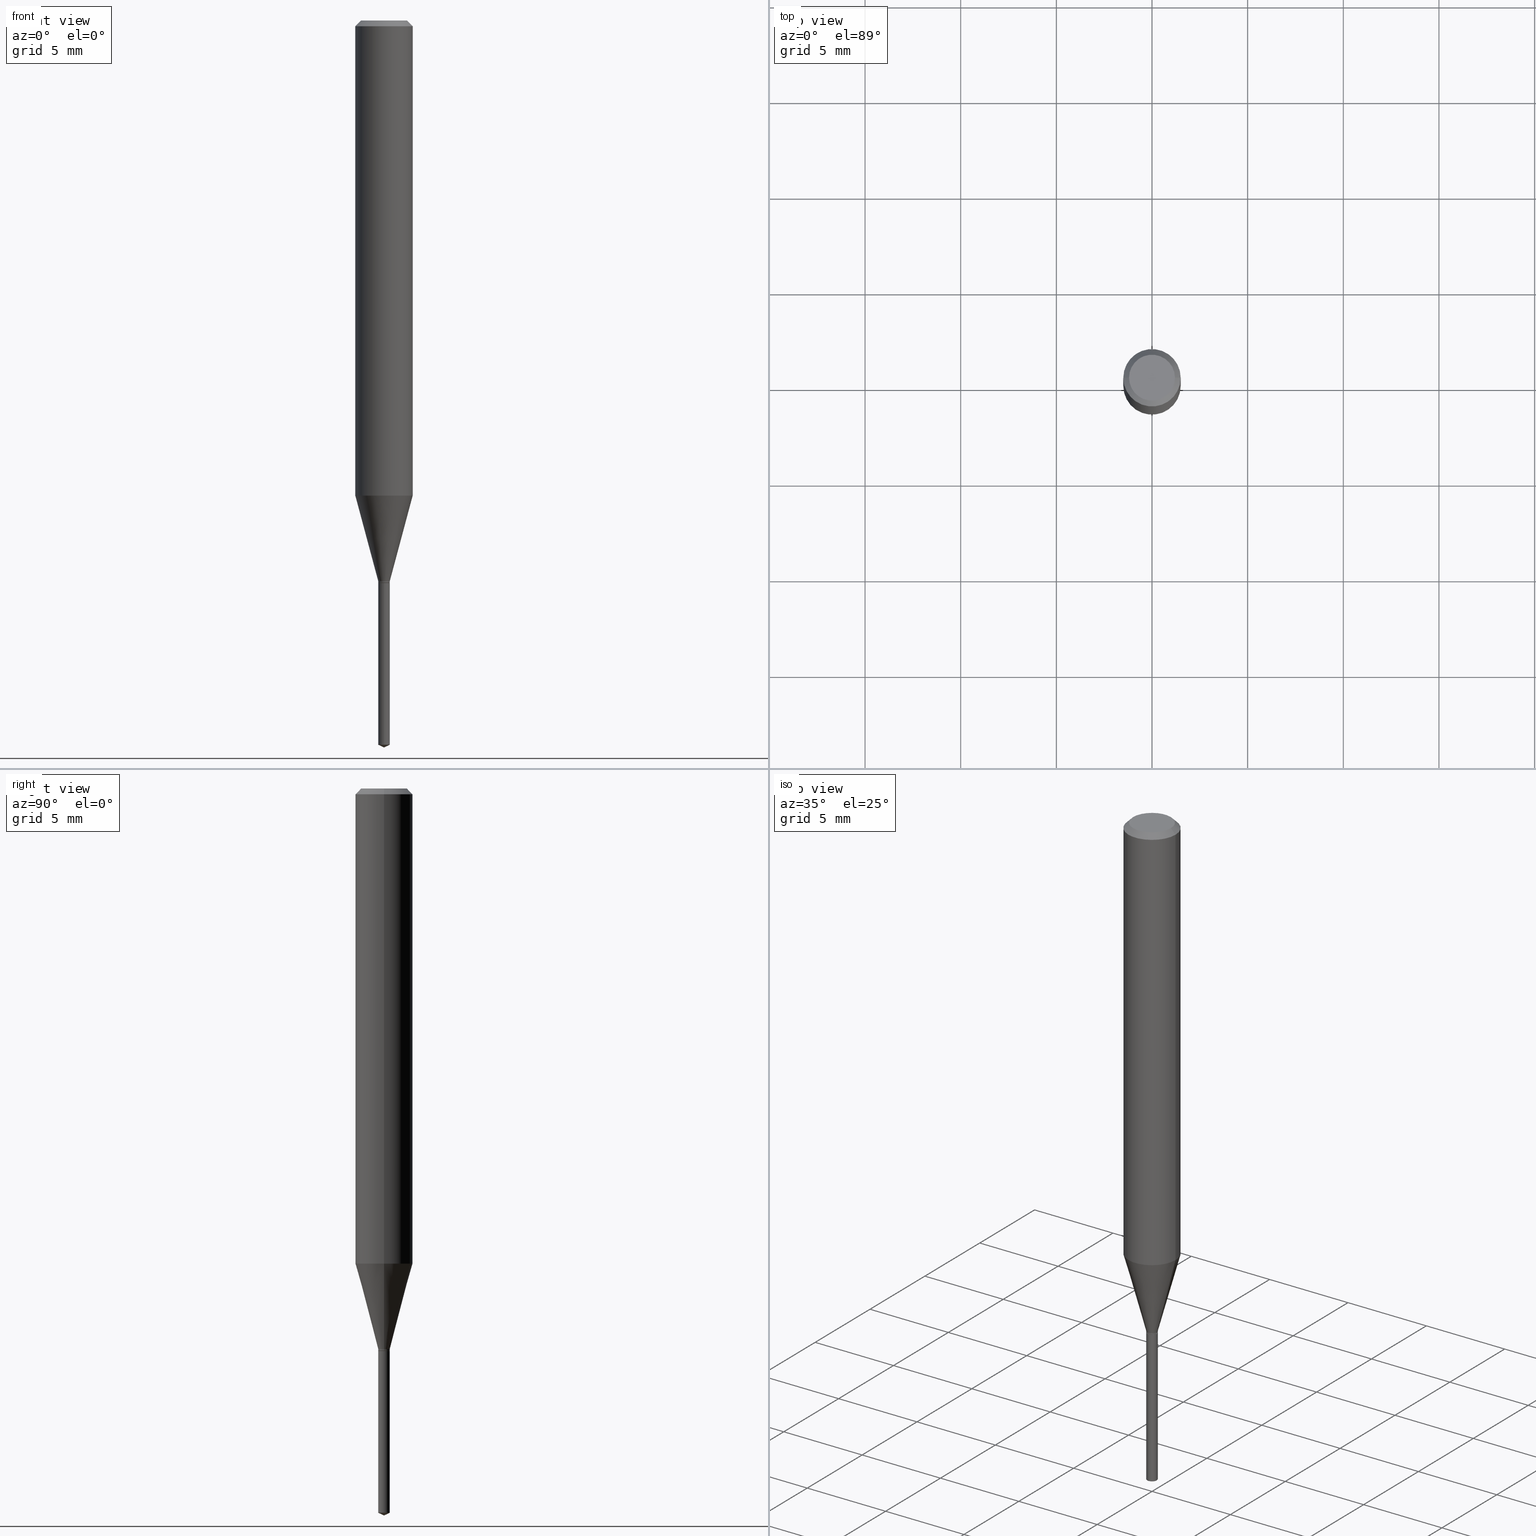
[diagram: canonical four-view strip — front | top / right | iso, engineering-drawing reading convention]
A machine part, canonical four-view strip (front | top / right | iso — engineering-drawing reading convention). The complete STEP part file that produces these views, byte-faithful:
ISO-10303-21;
HEADER;
FILE_DESCRIPTION (( 'STEP AP203' ),
    '1' );
FILE_NAME ('07435.STEP',
    '2024-04-23T21:24:49',
    ( '' ),
    ( '' ),
    'SwSTEP 2.0',
    'SolidWorks 2023',
    '' );
FILE_SCHEMA (( 'CONFIG_CONTROL_DESIGN' ));
ENDSEC;

DATA;
#1 = ORIENTED_EDGE ( 'NONE', *, *, #400, .F. ) ;
#2 = PERSON_AND_ORGANIZATION_ROLE ( 'creator' ) ;
#3 = CARTESIAN_POINT ( 'NONE',  ( 3.642354130892786976E-29, -5.208483163453085578E-15, -1.490597569633770991 ) ) ;
#4 = PERSON_AND_ORGANIZATION_ROLE ( 'design_supplier' ) ;
#5 = CARTESIAN_POINT ( 'NONE',  ( 3.642354130892786976E-29, -5.208483163453085578E-15, -1.490597569633770991 ) ) ;
#6 = PERSON_AND_ORGANIZATION ( #482, #166 ) ;
#7 = AXIS2_PLACEMENT_3D ( 'NONE', #32, #378, #296 ) ;
#8 = DIRECTION ( 'NONE',  ( -2.436895557736890074E-29, 3.503758718580032420E-15, 1.000000000000000000 ) ) ;
#9 = CC_DESIGN_APPROVAL ( #284, ( #55 ) ) ;
#10 = EDGE_CURVE ( 'NONE', #190, #469, #73, .T. ) ;
#11 = APPLICATION_PROTOCOL_DEFINITION ( 'international standard', 'config_control_design', 1994, #23 ) ;
#12 = DIRECTION ( 'NONE',  ( -2.445468806185136597E-29, 3.491481338843145583E-15, 1.000000000000000000 ) ) ;
#13 = ORIENTED_EDGE ( 'NONE', *, *, #269, .F. ) ;
#14 = EDGE_CURVE ( 'NONE', #433, #190, #382, .T. ) ;
#15 = CARTESIAN_POINT ( 'NONE',  ( 0.000000000000000000, 0.000000000000000000, 0.000000000000000000 ) ) ;
#16 = DIRECTION ( 'NONE',  ( -2.445468806185136597E-29, 3.491481338843145583E-15, 1.000000000000000000 ) ) ;
#17 = AXIS2_PLACEMENT_3D ( 'NONE', #396, #434, #467 ) ;
#18 = DIRECTION ( 'NONE',  ( -2.445468806185136597E-29, 3.491481338843145583E-15, 1.000000000000000000 ) ) ;
#19 = ORIENTED_EDGE ( 'NONE', *, *, #462, .T. ) ;
#20 = EDGE_LOOP ( 'NONE', ( #136, #127 ) ) ;
#21 = AXIS2_PLACEMENT_3D ( 'NONE', #403, #145, #377 ) ;
#22 = CIRCLE ( 'NONE', #31, 0.05904999999999999832 ) ;
#23 = APPLICATION_CONTEXT ( 'configuration controlled 3d designs of mechanical parts and assemblies' ) ;
#24 = ORIENTED_EDGE ( 'NONE', *, *, #234, .F. ) ;
#25 = LINE ( 'NONE', #137, #90 ) ;
#26 = ORIENTED_EDGE ( 'NONE', *, *, #204, .T. ) ;
#27 = DIRECTION ( 'NONE',  ( -2.445468806185136597E-29, 3.491481338843145583E-15, 1.000000000000000000 ) ) ;
#28 = ADVANCED_FACE ( 'NONE', ( #151 ), #344, .T. ) ;
#29 = VERTEX_POINT ( 'NONE', #340 ) ;
#30 = DIRECTION ( 'NONE',  ( -2.445468806185136597E-29, 3.491481338843145583E-15, 1.000000000000000000 ) ) ;
#31 = AXIS2_PLACEMENT_3D ( 'NONE', #440, #30, #184 ) ;
#32 = CARTESIAN_POINT ( 'NONE',  ( 2.830630143159295633E-29, -4.041389649710940900E-15, -1.157499999999999973 ) ) ;
#33 = CARTESIAN_POINT ( 'NONE',  ( 0.05905000000000011628, -3.825827684443467023E-15, -0.9776605993423704843 ) ) ;
#34 = DIRECTION ( 'NONE',  ( -6.982962677686266711E-15, -1.000000000000000000, 3.520397390770451109E-15 ) ) ;
#35 =( NAMED_UNIT ( * ) SI_UNIT ( $, .STERADIAN. ) SOLID_ANGLE_UNIT ( ) );
#36 = DIRECTION ( 'NONE',  ( -2.436895557736890355E-29, 3.503758718580032420E-15, 1.000000000000000000 ) ) ;
#37 = APPROVAL_PERSON_ORGANIZATION ( #6, #370, #173 ) ;
#38 = DIRECTION ( 'NONE',  ( -2.445468806185136877E-29, 3.491481338843145188E-15, 1.000000000000000000 ) ) ;
#39 = PERSON_AND_ORGANIZATION_ROLE ( 'creator' ) ;
#40 = CARTESIAN_POINT ( 'NONE',  ( 2.829407408756202832E-29, -4.039643909041518608E-15, -1.156999999999999806 ) ) ;
#41 = APPROVAL_STATUS ( 'not_yet_approved' ) ;
#42 = LINE ( 'NONE', #208, #411 ) ;
#43 = PERSON_AND_ORGANIZATION_ROLE ( 'design_owner' ) ;
#44 = ADVANCED_FACE ( 'NONE', ( #100 ), #174, .T. ) ;
#45 = CIRCLE ( 'NONE', #387, 0.01180000000000000146 ) ;
#46 = CARTESIAN_POINT ( 'NONE',  ( 8.265746106709734507E-48, -1.180129479067563789E-33, -3.380025165646692144E-19 ) ) ;
#47 = PRODUCT_DEFINITION_FORMATION_WITH_SPECIFIED_SOURCE ( 'ANY', '', #97, .NOT_KNOWN. ) ;
#48 = DIRECTION ( 'NONE',  ( -2.445468806185136597E-29, 3.491481338843145583E-15, 1.000000000000000000 ) ) ;
#49 = DIRECTION ( 'NONE',  ( 2.438088387897960049E-29, -3.491481338843145188E-15, -1.000000000000000000 ) ) ;
#50 = EDGE_CURVE ( 'NONE', #365, #359, #471, .T. ) ;
#51 = LINE ( 'NONE', #316, #464 ) ;
#52 = CIRCLE ( 'NONE', #371, 0.04724000000000000421 ) ;
#53 = ORIENTED_EDGE ( 'NONE', *, *, #50, .T. ) ;
#54 = APPROVAL_PERSON_ORGANIZATION ( #414, #329, #381 ) ;
#55 = PRODUCT_DEFINITION ( 'UNKNOWN', '', #47, #285 ) ;
#56 = EDGE_LOOP ( 'NONE', ( #1, #221, #394 ) ) ;
#57 = EDGE_CURVE ( 'NONE', #89, #433, #45, .T. ) ;
#58 = ORIENTED_EDGE ( 'NONE', *, *, #188, .T. ) ;
#59 = AXIS2_PLACEMENT_3D ( 'NONE', #220, #96, #334 ) ;
#60 = CARTESIAN_POINT ( 'NONE',  ( 0.01180000000000000146, -4.122042868638216732E-15, -1.156999999999999806 ) ) ;
#61 = ORIENTED_EDGE ( 'NONE', *, *, #475, .T. ) ;
#62 = CYLINDRICAL_SURFACE ( 'NONE', #158, 0.05905000000000006771 ) ;
#63 = ORIENTED_EDGE ( 'NONE', *, *, #485, .F. ) ;
#64 = DIRECTION ( 'NONE',  ( 2.445468806185136597E-29, -3.491481338843145583E-15, -1.000000000000000000 ) ) ;
#65 = LINE ( 'NONE', #373, #103 ) ;
#66 = CARTESIAN_POINT ( 'NONE',  ( 2.888098660104663328E-31, -4.123439461173779030E-17, -0.01181000000000006871 ) ) ;
#67 = AXIS2_PLACEMENT_3D ( 'NONE', #460, #274, #421 ) ;
#68 = CARTESIAN_POINT ( 'NONE',  ( 0.04724000000000000421, -3.852183633974369345E-16, -3.380025165621689721E-19 ) ) ;
#69 = DIMENSIONAL_EXPONENTS ( 1.000000000000000000, 0.000000000000000000, 0.000000000000000000, 0.000000000000000000, 0.000000000000000000, 0.000000000000000000, 0.000000000000000000 ) ;
#70 = FACE_OUTER_BOUND ( 'NONE', #245, .T. ) ;
#71 = DIRECTION ( 'NONE',  ( 0.7071067811865453523, -7.319954787623248157E-15, -0.7071067811865496822 ) ) ;
#72 =( LENGTH_UNIT ( ) NAMED_UNIT ( * ) SI_UNIT ( $, .METRE. ) );
#73 = LINE ( 'NONE', #333, #249 ) ;
#74 = PERSON_AND_ORGANIZATION ( #482, #166 ) ;
#75 = AXIS2_PLACEMENT_3D ( 'NONE', #444, #448, #484 ) ;
#76 = CIRCLE ( 'NONE', #447, 0.01130000000000000102 ) ;
#77 = DIRECTION ( 'NONE',  ( -6.982962677686265922E-15, -1.000000000000000000, 0.000000000000000000 ) ) ;
#78 = COORDINATED_UNIVERSAL_TIME_OFFSET ( 5, 0, .BEHIND. ) ;
#79 = CARTESIAN_POINT ( 'NONE',  ( 2.888098660104663328E-31, -4.123439461173779030E-17, -0.01181000000000006871 ) ) ;
#80 = DIRECTION ( 'NONE',  ( 1.000000000000000000, -6.982962677686258033E-15, 0.000000000000000000 ) ) ;
#81 = ADVANCED_FACE ( 'NONE', ( #223 ), #124, .T. ) ;
#82 = CARTESIAN_POINT ( 'NONE',  ( -8.239895959666965094E-17, -0.01180000000000404510, -1.157499999999999973 ) ) ;
#83 = ORIENTED_EDGE ( 'NONE', *, *, #210, .F. ) ;
#84 = AXIS2_PLACEMENT_3D ( 'NONE', #3, #36, #153 ) ;
#85 = CYLINDRICAL_SURFACE ( 'NONE', #314, 0.01180000000000000146 ) ;
#86 = EDGE_LOOP ( 'NONE', ( #348, #160 ) ) ;
#87 = FACE_OUTER_BOUND ( 'NONE', #321, .T. ) ;
#88 = CARTESIAN_POINT ( 'NONE',  ( 4.132873053354867254E-48, -5.900647395337818946E-34, -1.690012582823346072E-19 ) ) ;
#89 = VERTEX_POINT ( 'NONE', #406 ) ;
#90 = VECTOR ( 'NONE', #252, 39.37007874015748143 ) ;
#91 = ORIENTED_EDGE ( 'NONE', *, *, #177, .F. ) ;
#92 = EDGE_CURVE ( 'NONE', #172, #98, #288, .T. ) ;
#93 = ORIENTED_EDGE ( 'NONE', *, *, #57, .T. ) ;
#94 = DIRECTION ( 'NONE',  ( 1.000000000000000000, -6.982962677686254878E-15, 0.000000000000000000 ) ) ;
#95 = ORIENTED_EDGE ( 'NONE', *, *, #142, .T. ) ;
#96 = DIRECTION ( 'NONE',  ( -2.445468806185136597E-29, 3.491481338843145583E-15, 1.000000000000000000 ) ) ;
#97 = PRODUCT ( '07435', '07435', '', ( #150 ) ) ;
#98 = VERTEX_POINT ( 'NONE', #68 ) ;
#99 = DIRECTION ( 'NONE',  ( -2.445468806185136597E-29, 3.491481338843145583E-15, 1.000000000000000000 ) ) ;
#100 = FACE_OUTER_BOUND ( 'NONE', #56, .T. ) ;
#101 = CARTESIAN_POINT ( 'NONE',  ( 3.665860549465548495E-29, -5.213551284776692655E-15, -1.496099999999999985 ) ) ;
#102 = VERTEX_POINT ( 'NONE', #196 ) ;
#103 = VECTOR ( 'NONE', #71, 39.37007874015748143 ) ;
#104 = CYLINDRICAL_SURFACE ( 'NONE', #479, 0.01180000000000000319 ) ;
#105 =( GEOMETRIC_REPRESENTATION_CONTEXT ( 3 ) GLOBAL_UNCERTAINTY_ASSIGNED_CONTEXT ( ( #375 ) ) GLOBAL_UNIT_ASSIGNED_CONTEXT ( ( #200, #456, #35 ) ) REPRESENTATION_CONTEXT ( 'NONE', 'WORKASPACE' ) );
#106 = ADVANCED_FACE ( 'NONE', ( #107 ), #148, .T. ) ;
#107 = FACE_OUTER_BOUND ( 'NONE', #120, .T. ) ;
#108 = PERSON_AND_ORGANIZATION ( #482, #166 ) ;
#109 = DIRECTION ( 'NONE',  ( -2.445468806185136597E-29, 3.491481338843145583E-15, 1.000000000000000000 ) ) ;
#110 = APPROVAL_STATUS ( 'not_yet_approved' ) ;
#111 = DIRECTION ( 'NONE',  ( 1.000000000000000000, -6.982962677686258033E-15, 0.000000000000000000 ) ) ;
#112 = ADVANCED_FACE ( 'NONE', ( #293 ), #114, .T. ) ;
#113 = DATE_AND_TIME ( #306, #149 ) ;
#114 = CONICAL_SURFACE ( 'NONE', #21, 84.42940631927440620, 1.134464013796316229 ) ;
#115 = VECTOR ( 'NONE', #326, 39.37007874015748143 ) ;
#116 = ADVANCED_BREP_SHAPE_REPRESENTATION ( '07435', ( #337, #163, #239 ), #105 ) ;
#117 = FACE_OUTER_BOUND ( 'NONE', #397, .T. ) ;
#118 = EDGE_CURVE ( 'NONE', #98, #143, #65, .T. ) ;
#119 = LINE ( 'NONE', #122, #436 ) ;
#120 = EDGE_LOOP ( 'NONE', ( #13, #214, #412, #139 ) ) ;
#121 = CALENDAR_DATE ( 2024, 23, 4 ) ;
#122 = CARTESIAN_POINT ( 'NONE',  ( 0.01130000000000000102, -4.120297127968795228E-15, -1.157499999999999973 ) ) ;
#123 = EDGE_LOOP ( 'NONE', ( #353, #53, #435, #247 ) ) ;
#124 = CONICAL_SURFACE ( 'NONE', #489, 0.01180000000000000146, 0.2617993877991500740 ) ;
#125 = LOCAL_TIME ( 17, 24, 49.00000000000000000, #209 ) ;
#126 = LINE ( 'NONE', #82, #191 ) ;
#127 = ORIENTED_EDGE ( 'NONE', *, *, #234, .T. ) ;
#128 = CALENDAR_DATE ( 2024, 23, 4 ) ;
#129 = CARTESIAN_POINT ( 'NONE',  ( 8.384404281972834178E-17, 0.01179999999999595782, -1.157499999999999973 ) ) ;
#130 = DIRECTION ( 'NONE',  ( 1.000000000000000000, -6.982962677686265922E-15, 4.876176775795935793E-29 ) ) ;
#131 = EDGE_LOOP ( 'NONE', ( #95, #428, #299, #91 ) ) ;
#132 = AXIS2_PLACEMENT_3D ( 'NONE', #233, #376, #342 ) ;
#133 = EDGE_LOOP ( 'NONE', ( #331, #472, #135, #176 ) ) ;
#134 = CIRCLE ( 'NONE', #17, 0.01180000000000000146 ) ;
#135 = ORIENTED_EDGE ( 'NONE', *, *, #302, .F. ) ;
#136 = ORIENTED_EDGE ( 'NONE', *, *, #92, .T. ) ;
#137 = CARTESIAN_POINT ( 'NONE',  ( -0.05904999999999999832, 3.711095515056362547E-16, -0.01181000000000006871 ) ) ;
#138 = ADVANCED_FACE ( 'NONE', ( #449 ), #185, .T. ) ;
#139 = ORIENTED_EDGE ( 'NONE', *, *, #169, .F. ) ;
#140 = AXIS2_PLACEMENT_3D ( 'NONE', #347, #352, #457 ) ;
#141 = DIRECTION ( 'NONE',  ( 1.000000000000000000, -6.982962677686266711E-15, 4.876176775795936353E-29 ) ) ;
#142 = EDGE_CURVE ( 'NONE', #359, #365, #298, .T. ) ;
#143 = VERTEX_POINT ( 'NONE', #228 ) ;
#144 = CARTESIAN_POINT ( 'NONE',  ( -0.01180000000000000146, -3.950562644213562832E-15, -1.153999999999999915 ) ) ;
#145 = DIRECTION ( 'NONE',  ( -2.436895557736890355E-29, 3.503758718580032420E-15, 1.000000000000000000 ) ) ;
#146 = ADVANCED_FACE ( 'NONE', ( #261 ), #305, .F. ) ;
#147 = CARTESIAN_POINT ( 'NONE',  ( 8.384404281972829247E-17, 0.01179999999999479902, -1.490597569633770991 ) ) ;
#148 = CYLINDRICAL_SURFACE ( 'NONE', #265, 0.05905000000000006771 ) ;
#149 = LOCAL_TIME ( 17, 24, 49.00000000000000000, #78 ) ;
#150 = MECHANICAL_CONTEXT ( 'NONE', #268, 'mechanical' ) ;
#151 = FACE_OUTER_BOUND ( 'NONE', #399, .T. ) ;
#152 = CALENDAR_DATE ( 2024, 23, 4 ) ;
#153 = DIRECTION ( 'NONE',  ( -6.982962677686265922E-15, -1.000000000000000000, 0.000000000000000000 ) ) ;
#154 = PERSON_AND_ORGANIZATION ( #482, #166 ) ;
#155 = CARTESIAN_POINT ( 'NONE',  ( -0.01130000000000000102, -3.958449093395937755E-15, -1.157499999999999973 ) ) ;
#156 = PERSON_AND_ORGANIZATION ( #482, #166 ) ;
#157 = AXIS2_PLACEMENT_3D ( 'NONE', #271, #48, #417 ) ;
#158 = AXIS2_PLACEMENT_3D ( 'NONE', #367, #27, #141 ) ;
#159 = CARTESIAN_POINT ( 'NONE',  ( 0.01130000000000000102, -4.120297127968795228E-15, -1.157499999999999973 ) ) ;
#160 = ORIENTED_EDGE ( 'NONE', *, *, #317, .F. ) ;
#161 = APPROVAL_STATUS ( 'not_yet_approved' ) ;
#162 = DIRECTION ( 'NONE',  ( -2.445468806185136877E-29, 3.491481338843145188E-15, 1.000000000000000000 ) ) ;
#163 = MANIFOLD_SOLID_BREP ( 'Body-Move/Copy2[2]', #422 ) ;
#164 = CARTESIAN_POINT ( 'NONE',  ( 2.822071002337647144E-29, -4.029169465024989587E-15, -1.153999999999999915 ) ) ;
#165 = PRODUCT_RELATED_PRODUCT_CATEGORY ( 'detail', '', ( #97 ) ) ;
#166 = ORGANIZATION ( 'UNSPECIFIED', 'UNSPECIFIED', '' ) ;
#167 = DIRECTION ( 'NONE',  ( 1.000000000000000000, -6.982962677686267499E-15, 4.876176775795935793E-29 ) ) ;
#168 = DIRECTION ( 'NONE',  ( -1.000000000000000000, 6.982962677686266711E-15, 0.000000000000000000 ) ) ;
#169 = EDGE_CURVE ( 'NONE', #327, #143, #361, .T. ) ;
#170 = ORIENTED_EDGE ( 'NONE', *, *, #429, .T. ) ;
#171 = EDGE_CURVE ( 'NONE', #365, #325, #313, .T. ) ;
#172 = VERTEX_POINT ( 'NONE', #237 ) ;
#173 = APPROVAL_ROLE ( '' ) ;
#174 = CONICAL_SURFACE ( 'NONE', #224, 84.42940631927440620, 1.134464013796316229 ) ;
#175 = VERTEX_POINT ( 'NONE', #159 ) ;
#176 = ORIENTED_EDGE ( 'NONE', *, *, #10, .F. ) ;
#177 = EDGE_CURVE ( 'NONE', #359, #102, #126, .T. ) ;
#178 = DIRECTION ( 'NONE',  ( -2.436895557736890355E-29, 3.503758718580032420E-15, 1.000000000000000000 ) ) ;
#179 = ORIENTED_EDGE ( 'NONE', *, *, #475, .F. ) ;
#180 = DIRECTION ( 'NONE',  ( -6.982962677686265133E-15, -1.000000000000000000, 0.000000000000000000 ) ) ;
#181 = ORIENTED_EDGE ( 'NONE', *, *, #485, .T. ) ;
#182 = VECTOR ( 'NONE', #8, 39.37007874015748143 ) ;
#183 = AXIS2_PLACEMENT_3D ( 'NONE', #79, #236, #384 ) ;
#184 = DIRECTION ( 'NONE',  ( 1.000000000000000000, -6.982962677686266711E-15, 0.000000000000000000 ) ) ;
#185 = CYLINDRICAL_SURFACE ( 'NONE', #7, 0.01180000000000000319 ) ;
#186 = FACE_OUTER_BOUND ( 'NONE', #439, .T. ) ;
#187 = DIRECTION ( 'NONE',  ( -2.445468806185136597E-29, 3.491481338843145583E-15, 1.000000000000000000 ) ) ;
#188 = EDGE_CURVE ( 'NONE', #246, #89, #42, .T. ) ;
#189 = COORDINATED_UNIVERSAL_TIME_OFFSET ( 5, 0, .BEHIND. ) ;
#190 = VERTEX_POINT ( 'NONE', #386 ) ;
#191 = VECTOR ( 'NONE', #241, 39.37007874015748143 ) ;
#192 = CIRCLE ( 'NONE', #438, 0.01180000000000000146 ) ;
#193 = DIRECTION ( 'NONE',  ( 0.000000000000000000, 0.000000000000000000, 1.000000000000000000 ) ) ;
#194 = ORIENTED_EDGE ( 'NONE', *, *, #408, .T. ) ;
#195 = COORDINATED_UNIVERSAL_TIME_OFFSET ( 5, 0, .BEHIND. ) ;
#196 = CARTESIAN_POINT ( 'NONE',  ( -8.239895959666962629E-17, -0.01180000000000404337, -1.157499999999999973 ) ) ;
#197 = SECURITY_CLASSIFICATION_LEVEL ( 'unclassified' ) ;
#198 = DIRECTION ( 'NONE',  ( -1.000000000000000000, 6.982962677686265922E-15, -4.876176775795935793E-29 ) ) ;
#199 = ORIENTED_EDGE ( 'NONE', *, *, #169, .T. ) ;
#200 =( CONVERSION_BASED_UNIT ( 'INCH', #301 ) LENGTH_UNIT ( ) NAMED_UNIT ( #69 ) );
#201 = VECTOR ( 'NONE', #38, 39.37007874015748143 ) ;
#202 = CIRCLE ( 'NONE', #322, 0.01130000000000000102 ) ;
#203 = LINE ( 'NONE', #278, #452 ) ;
#204 = EDGE_CURVE ( 'NONE', #175, #433, #119, .T. ) ;
#205 = DIRECTION ( 'NONE',  ( 1.000000000000000000, -6.982962677686258033E-15, 0.000000000000000000 ) ) ;
#206 = ORIENTED_EDGE ( 'NONE', *, *, #468, .F. ) ;
#207 = APPROVAL_DATE_TIME ( #320, #370 ) ;
#208 = CARTESIAN_POINT ( 'NONE',  ( -0.01130000000000000102, -3.961098320570048956E-15, -1.157499999999999973 ) ) ;
#209 = COORDINATED_UNIVERSAL_TIME_OFFSET ( 5, 0, .BEHIND. ) ;
#210 = EDGE_CURVE ( 'NONE', #368, #29, #203, .T. ) ;
#211 = AXIS2_PLACEMENT_3D ( 'NONE', #407, #364, #229 ) ;
#212 = CARTESIAN_POINT ( 'NONE',  ( 2.830630143159295633E-29, -4.041389649710940900E-15, -1.157499999999999973 ) ) ;
#213 = ORIENTED_EDGE ( 'NONE', *, *, #142, .F. ) ;
#214 = ORIENTED_EDGE ( 'NONE', *, *, #420, .T. ) ;
#215 = ORIENTED_EDGE ( 'NONE', *, *, #358, .T. ) ;
#216 = ADVANCED_FACE ( 'NONE', ( #390 ), #430, .T. ) ;
#217 = PLANE ( 'NONE',  #232 ) ;
#218 = EDGE_LOOP ( 'NONE', ( #83, #181, #461, #363 ) ) ;
#219 = ADVANCED_FACE ( 'NONE', ( #355 ), #330, .T. ) ;
#220 = CARTESIAN_POINT ( 'NONE',  ( 2.830630143159295633E-29, -4.041389649710940900E-15, -1.157499999999999973 ) ) ;
#221 = ORIENTED_EDGE ( 'NONE', *, *, #468, .T. ) ;
#222 = LINE ( 'NONE', #101, #315 ) ;
#223 = FACE_OUTER_BOUND ( 'NONE', #133, .T. ) ;
#224 = AXIS2_PLACEMENT_3D ( 'NONE', #257, #263, #34 ) ;
#225 = AXIS2_PLACEMENT_3D ( 'NONE', #66, #64, #168 ) ;
#226 = CARTESIAN_POINT ( 'NONE',  ( -0.01180000000000000146, 8.384404281969183231E-17, -5.804343406500789016E-31 ) ) ;
#227 = CC_DESIGN_PERSON_AND_ORGANIZATION_ASSIGNMENT ( #343, #4, ( #47 ) ) ;
#228 = CARTESIAN_POINT ( 'NONE',  ( 0.05904999999999999832, -4.535783407291118600E-16, -0.01181000000000006871 ) ) ;
#229 = DIRECTION ( 'NONE',  ( 1.000000000000000000, -6.982962677686265133E-15, 0.000000000000000000 ) ) ;
#230 = CARTESIAN_POINT ( 'NONE',  ( 0.01180000000000000146, -8.239895959669796365E-17, 5.753888595439204775E-31 ) ) ;
#231 = DIRECTION ( 'NONE',  ( -2.436895557736890355E-29, 3.503758718580032420E-15, 1.000000000000000000 ) ) ;
#232 = AXIS2_PLACEMENT_3D ( 'NONE', #401, #483, #130 ) ;
#233 = CARTESIAN_POINT ( 'NONE',  ( 0.000000000000000000, 0.000000000000000000, 0.000000000000000000 ) ) ;
#234 = EDGE_CURVE ( 'NONE', #98, #172, #52, .T. ) ;
#235 = DATE_TIME_ROLE ( 'classification_date' ) ;
#236 = DIRECTION ( 'NONE',  ( 2.445468806185136597E-29, -3.491481338843145583E-15, -1.000000000000000000 ) ) ;
#237 = CARTESIAN_POINT ( 'NONE',  ( -0.04724000000000000421, 3.504923541997677355E-16, -3.380025165670481712E-19 ) ) ;
#238 = CIRCLE ( 'NONE', #446, 0.01180000000000000146 ) ;
#239 = AXIS2_PLACEMENT_3D ( 'NONE', #270, #193, #266 ) ;
#240 = DIRECTION ( 'NONE',  ( -2.445468806185136597E-29, 3.491481338843145583E-15, 1.000000000000000000 ) ) ;
#241 = DIRECTION ( 'NONE',  ( -2.436895557736890074E-29, 3.503758718580032420E-15, 1.000000000000000000 ) ) ;
#242 = CARTESIAN_POINT ( 'NONE',  ( 2.390838498728031811E-29, -3.413483738326091708E-15, -0.9776605993423704843 ) ) ;
#243 = AXIS2_PLACEMENT_3D ( 'NONE', #88, #49, #198 ) ;
#244 = CIRCLE ( 'NONE', #405, 0.05905000000000013016 ) ;
#245 = EDGE_LOOP ( 'NONE', ( #473, #481, #61, #199 ) ) ;
#246 = VERTEX_POINT ( 'NONE', #155 ) ;
#247 = ORIENTED_EDGE ( 'NONE', *, *, #408, .F. ) ;
#248 = DIRECTION ( 'NONE',  ( -6.328713451373374112E-15, -0.9063077870366492705, 0.4226182617407007180 ) ) ;
#249 = VECTOR ( 'NONE', #410, 39.37007874015747433 ) ;
#250 = SECURITY_CLASSIFICATION ( '', '', #197 ) ;
#251 = EDGE_LOOP ( 'NONE', ( #19, #58, #275, #476 ) ) ;
#252 = DIRECTION ( 'NONE',  ( -0.7071067811865453523, 2.468850131082234184E-15, -0.7071067811865496822 ) ) ;
#253 = ORIENTED_EDGE ( 'NONE', *, *, #393, .T. ) ;
#254 = LINE ( 'NONE', #443, #276 ) ;
#255 = DIRECTION ( 'NONE',  ( 1.000000000000000000, -6.982962677686266711E-15, 4.876176775795936353E-29 ) ) ;
#256 = DIRECTION ( 'NONE',  ( -2.436895557736890355E-29, 3.503758718580032420E-15, 1.000000000000000000 ) ) ;
#257 = CARTESIAN_POINT ( 'NONE',  ( -9.228500701063235563E-28, 1.327154942851870051E-13, 37.87397874015748300 ) ) ;
#258 = AXIS2_PLACEMENT_3D ( 'NONE', #5, #231, #77 ) ;
#259 = APPROVAL_PERSON_ORGANIZATION ( #74, #284, #451 ) ;
#260 = DIRECTION ( 'NONE',  ( 6.439704144417030353E-15, 0.9063077870366522681, 0.4226182617406943898 ) ) ;
#261 = FACE_OUTER_BOUND ( 'NONE', #20, .T. ) ;
#262 = ADVANCED_FACE ( 'NONE', ( #453 ), #85, .T. ) ;
#263 = DIRECTION ( 'NONE',  ( -2.436895557736890355E-29, 3.503758718580032420E-15, 1.000000000000000000 ) ) ;
#264 = DIRECTION ( 'NONE',  ( -2.445468806185136597E-29, 3.491481338843145583E-15, 1.000000000000000000 ) ) ;
#265 = AXIS2_PLACEMENT_3D ( 'NONE', #335, #264, #255 ) ;
#266 = DIRECTION ( 'NONE',  ( 1.000000000000000000, 0.000000000000000000, 0.000000000000000000 ) ) ;
#267 = DIRECTION ( 'NONE',  ( 1.000000000000000000, -6.982962677686258033E-15, 0.000000000000000000 ) ) ;
#268 = APPLICATION_CONTEXT ( 'configuration controlled 3d designs of mechanical parts and assemblies' ) ;
#269 = EDGE_CURVE ( 'NONE', #29, #327, #51, .T. ) ;
#270 = CARTESIAN_POINT ( 'NONE',  ( 0.000000000000000000, 0.000000000000000000, 0.000000000000000000 ) ) ;
#271 = CARTESIAN_POINT ( 'NONE',  ( 2.830630143159295633E-29, -4.041389649710940900E-15, -1.157499999999999973 ) ) ;
#272 = ORIENTED_EDGE ( 'NONE', *, *, #400, .T. ) ;
#273 = PERSON_AND_ORGANIZATION ( #482, #166 ) ;
#274 = DIRECTION ( 'NONE',  ( 2.436895557736890074E-29, -3.503758718580032420E-15, -1.000000000000000000 ) ) ;
#275 = ORIENTED_EDGE ( 'NONE', *, *, #442, .F. ) ;
#276 = VECTOR ( 'NONE', #248, 39.37007874015748854 ) ;
#277 = DIRECTION ( 'NONE',  ( -2.445468806185136597E-29, 3.491481338843145583E-15, 1.000000000000000000 ) ) ;
#278 = CARTESIAN_POINT ( 'NONE',  ( -0.01180000000000000146, -3.945325422205298321E-15, -1.153999999999999915 ) ) ;
#279 = ADVANCED_FACE ( 'NONE', ( #117 ), #311, .F. ) ;
#280 = LOCAL_TIME ( 17, 24, 49.00000000000000000, #309 ) ;
#281 = ORIENTED_EDGE ( 'NONE', *, *, #14, .F. ) ;
#282 = ORIENTED_EDGE ( 'NONE', *, *, #358, .F. ) ;
#283 = LINE ( 'NONE', #369, #362 ) ;
#284 = APPROVAL ( #41, 'UNSPECIFIED' ) ;
#285 = DESIGN_CONTEXT ( 'detailed design', #23, 'design' ) ;
#286 = ORIENTED_EDGE ( 'NONE', *, *, #118, .T. ) ;
#287 = CARTESIAN_POINT ( 'NONE',  ( 2.830630143159295633E-29, -4.041389649710940900E-15, -1.157499999999999973 ) ) ;
#288 = CIRCLE ( 'NONE', #75, 0.04724000000000000421 ) ;
#289 = CC_DESIGN_APPROVAL ( #329, ( #47 ) ) ;
#290 = EDGE_CURVE ( 'NONE', #190, #368, #455, .T. ) ;
#291 = ORIENTED_EDGE ( 'NONE', *, *, #269, .T. ) ;
#292 = CARTESIAN_POINT ( 'NONE',  ( 2.822071002337647144E-29, -4.029169465024989587E-15, -1.153999999999999915 ) ) ;
#293 = FACE_OUTER_BOUND ( 'NONE', #395, .T. ) ;
#294 = CC_DESIGN_DATE_AND_TIME_ASSIGNMENT ( #113, #235, ( #250 ) ) ;
#295 = DIRECTION ( 'NONE',  ( -2.445468806185136877E-29, 3.491481338843145188E-15, 1.000000000000000000 ) ) ;
#296 = DIRECTION ( 'NONE',  ( -6.982962677686265922E-15, -1.000000000000000000, 0.000000000000000000 ) ) ;
#297 = CARTESIAN_POINT ( 'NONE',  ( -8.239895959666156512E-17, -0.01180000000000521604, -1.490597569633770991 ) ) ;
#298 = CIRCLE ( 'NONE', #84, 0.01180000000000000493 ) ;
#299 = ORIENTED_EDGE ( 'NONE', *, *, #393, .F. ) ;
#300 = CONICAL_SURFACE ( 'NONE', #183, 0.05904999999999999832, 0.7853981633974452814 ) ;
#301 = LENGTH_MEASURE_WITH_UNIT ( LENGTH_MEASURE( 0.02539999999999999897 ), #72 );
#302 = EDGE_CURVE ( 'NONE', #469, #29, #244, .T. ) ;
#303 = ORIENTED_EDGE ( 'NONE', *, *, #317, .T. ) ;
#304 = DATE_TIME_ROLE ( 'creation_date' ) ;
#305 = PLANE ( 'NONE',  #243 ) ;
#306 = CALENDAR_DATE ( 2024, 23, 4 ) ;
#307 = DIRECTION ( 'NONE',  ( -2.445468806185136597E-29, 3.491481338843145583E-15, 1.000000000000000000 ) ) ;
#308 = CONICAL_SURFACE ( 'NONE', #225, 0.05904999999999999832, 0.7853981633974452814 ) ;
#309 = COORDINATED_UNIVERSAL_TIME_OFFSET ( 5, 0, .BEHIND. ) ;
#310 = CARTESIAN_POINT ( 'NONE',  ( 8.384404281972014502E-17, 0.01179999999999596129, -1.157499999999999973 ) ) ;
#311 = PLANE ( 'NONE',  #67 ) ;
#312 = SHAPE_DEFINITION_REPRESENTATION ( #402, #116 ) ;
#313 = LINE ( 'NONE', #310, #182 ) ;
#314 = AXIS2_PLACEMENT_3D ( 'NONE', #15, #12, #167 ) ;
#315 = VECTOR ( 'NONE', #260, 39.37007874015748143 ) ;
#316 = CARTESIAN_POINT ( 'NONE',  ( -0.05905000000000006771, 4.195754854663396409E-16, -2.904631170795525045E-30 ) ) ;
#317 = EDGE_CURVE ( 'NONE', #246, #175, #202, .T. ) ;
#318 = DIRECTION ( 'NONE',  ( -6.982962677686265922E-15, -1.000000000000000000, 0.000000000000000000 ) ) ;
#319 = ORIENTED_EDGE ( 'NONE', *, *, #302, .T. ) ;
#320 = DATE_AND_TIME ( #128, #125 ) ;
#321 = EDGE_LOOP ( 'NONE', ( #24, #286, #215, #179 ) ) ;
#322 = AXIS2_PLACEMENT_3D ( 'NONE', #212, #277, #426 ) ;
#323 = EDGE_LOOP ( 'NONE', ( #418, #93, #432, #63 ) ) ;
#324 = CC_DESIGN_PERSON_AND_ORGANIZATION_ASSIGNMENT ( #273, #43, ( #97 ) ) ;
#325 = VERTEX_POINT ( 'NONE', #129 ) ;
#326 = DIRECTION ( 'NONE',  ( -2.445468806185136877E-29, 3.491481338843145188E-15, 1.000000000000000000 ) ) ;
#327 = VERTEX_POINT ( 'NONE', #356 ) ;
#328 = CARTESIAN_POINT ( 'NONE',  ( 2.830630143159295633E-29, -4.041389649710940900E-15, -1.157499999999999973 ) ) ;
#329 = APPROVAL ( #110, 'UNSPECIFIED' ) ;
#330 = CONICAL_SURFACE ( 'NONE', #339, 0.01180000000000000146, 0.2617993877991500740 ) ;
#331 = ORIENTED_EDGE ( 'NONE', *, *, #290, .T. ) ;
#332 = FACE_OUTER_BOUND ( 'NONE', #86, .T. ) ;
#333 = CARTESIAN_POINT ( 'NONE',  ( 0.01180000000000000146, -4.111568424621687711E-15, -1.153999999999999915 ) ) ;
#334 = DIRECTION ( 'NONE',  ( 1.000000000000000000, -6.982962677686254878E-15, 0.000000000000000000 ) ) ;
#335 = CARTESIAN_POINT ( 'NONE',  ( 0.000000000000000000, 0.000000000000000000, 0.000000000000000000 ) ) ;
#336 = ADVANCED_FACE ( 'NONE', ( #87 ), #300, .T. ) ;
#337 = MANIFOLD_SOLID_BREP ( 'Body-Move/Copy2[1]', #477 ) ;
#338 = DATE_AND_TIME ( #419, #391 ) ;
#339 = AXIS2_PLACEMENT_3D ( 'NONE', #164, #16, #205 ) ;
#340 = CARTESIAN_POINT ( 'NONE',  ( -0.05905000000000011628, -2.993908252859751821E-15, -0.9776605993423704843 ) ) ;
#341 = CONICAL_SURFACE ( 'NONE', #59, 0.01130000000000000102, 0.7853981633974119747 ) ;
#342 = DIRECTION ( 'NONE',  ( 1.000000000000000000, -6.982962677686267499E-15, 4.876176775795935793E-29 ) ) ;
#343 = PERSON_AND_ORGANIZATION ( #482, #166 ) ;
#344 = CYLINDRICAL_SURFACE ( 'NONE', #132, 0.01180000000000000146 ) ;
#345 = PERSON_AND_ORGANIZATION_ROLE ( 'classification_officer' ) ;
#346 = CC_DESIGN_PERSON_AND_ORGANIZATION_ASSIGNMENT ( #154, #345, ( #250 ) ) ;
#347 = CARTESIAN_POINT ( 'NONE',  ( 2.888098660104663328E-31, -4.123439461173779030E-17, -0.01181000000000006871 ) ) ;
#348 = ORIENTED_EDGE ( 'NONE', *, *, #462, .F. ) ;
#349 = CC_DESIGN_SECURITY_CLASSIFICATION ( #250, ( #47 ) ) ;
#350 = DATE_AND_TIME ( #152, #490 ) ;
#351 = DIRECTION ( 'NONE',  ( 1.000000000000000000, -6.982962677686266711E-15, 4.876185090822587894E-29 ) ) ;
#352 = DIRECTION ( 'NONE',  ( -2.445468806185136597E-29, 3.491481338843145583E-15, 1.000000000000000000 ) ) ;
#353 = ORIENTED_EDGE ( 'NONE', *, *, #171, .F. ) ;
#354 = ADVANCED_FACE ( 'NONE', ( #186 ), #341, .T. ) ;
#355 = FACE_OUTER_BOUND ( 'NONE', #218, .T. ) ;
#356 = CARTESIAN_POINT ( 'NONE',  ( -0.05904999999999999832, -1.307783581002574437E-15, -0.01181000000000006871 ) ) ;
#357 = VERTEX_POINT ( 'NONE', #445 ) ;
#358 = EDGE_CURVE ( 'NONE', #143, #327, #22, .T. ) ;
#359 = VERTEX_POINT ( 'NONE', #297 ) ;
#360 = ORIENTED_EDGE ( 'NONE', *, *, #458, .F. ) ;
#361 = CIRCLE ( 'NONE', #140, 0.05904999999999999832 ) ;
#362 = VECTOR ( 'NONE', #295, 39.37007874015748143 ) ;
#363 = ORIENTED_EDGE ( 'NONE', *, *, #420, .F. ) ;
#364 = DIRECTION ( 'NONE',  ( -2.445468806185136597E-29, 3.491481338843145583E-15, 1.000000000000000000 ) ) ;
#365 = VERTEX_POINT ( 'NONE', #147 ) ;
#366 = ADVANCED_FACE ( 'NONE', ( #70 ), #308, .T. ) ;
#367 = CARTESIAN_POINT ( 'NONE',  ( 0.000000000000000000, 0.000000000000000000, 0.000000000000000000 ) ) ;
#368 = VERTEX_POINT ( 'NONE', #144 ) ;
#369 = CARTESIAN_POINT ( 'NONE',  ( 0.05905000000000006771, -4.123439461173745257E-16, 2.879382386107503723E-30 ) ) ;
#370 = APPROVAL ( #161, 'UNSPECIFIED' ) ;
#371 = AXIS2_PLACEMENT_3D ( 'NONE', #46, #307, #351 ) ;
#372 = CIRCLE ( 'NONE', #211, 0.05905000000000013016 ) ;
#373 = CARTESIAN_POINT ( 'NONE',  ( 0.05904999999999999832, -4.463468013801466955E-16, -0.01181000000000006871 ) ) ;
#374 = DIRECTION ( 'NONE',  ( 1.000000000000000000, -6.982962677686258033E-15, 0.000000000000000000 ) ) ;
#375 = UNCERTAINTY_MEASURE_WITH_UNIT (LENGTH_MEASURE( 1.000000000000000082E-05 ), #200, 'distance_accuracy_value', 'NONE');
#376 = DIRECTION ( 'NONE',  ( -2.445468806185136597E-29, 3.491481338843145583E-15, 1.000000000000000000 ) ) ;
#377 = DIRECTION ( 'NONE',  ( -6.982962677686266711E-15, -1.000000000000000000, 3.520397390770451109E-15 ) ) ;
#378 = DIRECTION ( 'NONE',  ( -2.436895557736890355E-29, 3.503758718580032420E-15, 1.000000000000000000 ) ) ;
#379 = CIRCLE ( 'NONE', #465, 0.01180000000000000146 ) ;
#380 = ADVANCED_FACE ( 'NONE', ( #486 ), #104, .T. ) ;
#381 = APPROVAL_ROLE ( '' ) ;
#382 = LINE ( 'NONE', #230, #201 ) ;
#383 = CC_DESIGN_PERSON_AND_ORGANIZATION_ASSIGNMENT ( #108, #39, ( #47 ) ) ;
#384 = DIRECTION ( 'NONE',  ( -1.000000000000000000, 6.982962677686266711E-15, 0.000000000000000000 ) ) ;
#385 = APPROVAL_DATE_TIME ( #488, #329 ) ;
#386 = CARTESIAN_POINT ( 'NONE',  ( 0.01180000000000000146, -4.111568424621687711E-15, -1.153999999999999915 ) ) ;
#387 = AXIS2_PLACEMENT_3D ( 'NONE', #40, #109, #409 ) ;
#388 = DIRECTION ( 'NONE',  ( 1.000000000000000000, -6.982962677686265133E-15, 0.000000000000000000 ) ) ;
#389 = DIRECTION ( 'NONE',  ( 0.7071067811865218156, -2.468850131081987665E-15, 0.7071067811865732189 ) ) ;
#390 = FACE_OUTER_BOUND ( 'NONE', #251, .T. ) ;
#391 = LOCAL_TIME ( 17, 24, 49.00000000000000000, #189 ) ;
#392 = EDGE_LOOP ( 'NONE', ( #319, #291, #282, #360 ) ) ;
#393 = EDGE_CURVE ( 'NONE', #102, #325, #379, .T. ) ;
#394 = ORIENTED_EDGE ( 'NONE', *, *, #50, .F. ) ;
#395 = EDGE_LOOP ( 'NONE', ( #206, #272, #213 ) ) ;
#396 = CARTESIAN_POINT ( 'NONE',  ( 2.830630143159295633E-29, -4.041389649710940900E-15, -1.157499999999999973 ) ) ;
#397 = EDGE_LOOP ( 'NONE', ( #253, #194 ) ) ;
#398 = FACE_OUTER_BOUND ( 'NONE', #392, .T. ) ;
#399 = EDGE_LOOP ( 'NONE', ( #441, #170, #470, #281 ) ) ;
#400 = EDGE_CURVE ( 'NONE', #357, #365, #222, .T. ) ;
#401 = CARTESIAN_POINT ( 'NONE',  ( 2.830630143159295633E-29, -4.041389649710940900E-15, -1.157499999999999973 ) ) ;
#402 = PRODUCT_DEFINITION_SHAPE ( 'NONE', 'NONE',  #55 ) ;
#403 = CARTESIAN_POINT ( 'NONE',  ( -9.228500701063235563E-28, 1.327154942851870051E-13, 37.87397874015748300 ) ) ;
#404 = LINE ( 'NONE', #226, #115 ) ;
#405 = AXIS2_PLACEMENT_3D ( 'NONE', #242, #240, #388 ) ;
#406 = CARTESIAN_POINT ( 'NONE',  ( -0.01180000000000000146, -3.950562644213562832E-15, -1.156999999999999806 ) ) ;
#407 = CARTESIAN_POINT ( 'NONE',  ( 2.390838498728031811E-29, -3.413483738326091708E-15, -0.9776605993423704843 ) ) ;
#408 = EDGE_CURVE ( 'NONE', #325, #102, #134, .T. ) ;
#409 = DIRECTION ( 'NONE',  ( 1.000000000000000000, -6.982962677686258033E-15, 0.000000000000000000 ) ) ;
#410 = DIRECTION ( 'NONE',  ( 0.2588190451025213501, 1.565188264969621968E-15, 0.9659258262890682012 ) ) ;
#411 = VECTOR ( 'NONE', #427, 39.37007874015748143 ) ;
#412 = ORIENTED_EDGE ( 'NONE', *, *, #458, .T. ) ;
#413 = CC_DESIGN_DATE_AND_TIME_ASSIGNMENT ( #350, #304, ( #55 ) ) ;
#414 = PERSON_AND_ORGANIZATION ( #482, #166 ) ;
#415 = DIRECTION ( 'NONE',  ( -0.2588190451025213501, 5.211531920934551042E-15, 0.9659258262890682012 ) ) ;
#416 = APPROVAL_DATE_TIME ( #338, #284 ) ;
#417 = DIRECTION ( 'NONE',  ( 1.000000000000000000, -6.982962677686254878E-15, 0.000000000000000000 ) ) ;
#418 = ORIENTED_EDGE ( 'NONE', *, *, #429, .F. ) ;
#419 = CALENDAR_DATE ( 2024, 23, 4 ) ;
#420 = EDGE_CURVE ( 'NONE', #29, #469, #372, .T. ) ;
#421 = DIRECTION ( 'NONE',  ( 6.982962677686265922E-15, 1.000000000000000000, -3.503758718580032420E-15 ) ) ;
#422 = CLOSED_SHELL ( 'NONE', ( #216, #336, #480, #81, #28, #262, #219, #106, #366, #146, #454, #354 ) ) ;
#423 = ORIENTED_EDGE ( 'NONE', *, *, #57, .F. ) ;
#424 = CC_DESIGN_APPROVAL ( #370, ( #250 ) ) ;
#425 = CC_DESIGN_PERSON_AND_ORGANIZATION_ASSIGNMENT ( #156, #2, ( #55 ) ) ;
#426 = DIRECTION ( 'NONE',  ( 1.000000000000000000, -6.982962677686254878E-15, 0.000000000000000000 ) ) ;
#427 = DIRECTION ( 'NONE',  ( -0.7071067811865218156, 7.493145998870261075E-15, 0.7071067811865732189 ) ) ;
#428 = ORIENTED_EDGE ( 'NONE', *, *, #171, .T. ) ;
#429 = EDGE_CURVE ( 'NONE', #89, #368, #404, .T. ) ;
#430 = CONICAL_SURFACE ( 'NONE', #157, 0.01130000000000000102, 0.7853981633974119747 ) ;
#431 = AXIS2_PLACEMENT_3D ( 'NONE', #466, #463, #267 ) ;
#432 = ORIENTED_EDGE ( 'NONE', *, *, #14, .T. ) ;
#433 = VERTEX_POINT ( 'NONE', #60 ) ;
#434 = DIRECTION ( 'NONE',  ( -2.436895557736890355E-29, 3.503758718580032420E-15, 1.000000000000000000 ) ) ;
#435 = ORIENTED_EDGE ( 'NONE', *, *, #177, .T. ) ;
#436 = VECTOR ( 'NONE', #389, 39.37007874015748143 ) ;
#437 = CARTESIAN_POINT ( 'NONE',  ( 2.829407408756202832E-29, -4.039643909041518608E-15, -1.156999999999999806 ) ) ;
#438 = AXIS2_PLACEMENT_3D ( 'NONE', #292, #99, #80 ) ;
#439 = EDGE_LOOP ( 'NONE', ( #450, #303, #26, #423 ) ) ;
#440 = CARTESIAN_POINT ( 'NONE',  ( 2.888098660104663328E-31, -4.123439461173779030E-17, -0.01181000000000006871 ) ) ;
#441 = ORIENTED_EDGE ( 'NONE', *, *, #442, .T. ) ;
#442 = EDGE_CURVE ( 'NONE', #433, #89, #238, .T. ) ;
#443 = CARTESIAN_POINT ( 'NONE',  ( 3.645839443930160666E-29, -5.241973418867586655E-15, -1.496099999999999985 ) ) ;
#444 = CARTESIAN_POINT ( 'NONE',  ( 8.265746106709734507E-48, -1.180129479067563789E-33, -3.380025165646692144E-19 ) ) ;
#445 = CARTESIAN_POINT ( 'NONE',  ( 3.645839443930160666E-29, -5.241973418867586655E-15, -1.496099999999999985 ) ) ;
#446 = AXIS2_PLACEMENT_3D ( 'NONE', #437, #18, #374 ) ;
#447 = AXIS2_PLACEMENT_3D ( 'NONE', #478, #474, #94 ) ;
#448 = DIRECTION ( 'NONE',  ( -2.445468806185136597E-29, 3.491481338843145583E-15, 1.000000000000000000 ) ) ;
#449 = FACE_OUTER_BOUND ( 'NONE', #131, .T. ) ;
#450 = ORIENTED_EDGE ( 'NONE', *, *, #188, .F. ) ;
#451 = APPROVAL_ROLE ( '' ) ;
#452 = VECTOR ( 'NONE', #415, 39.37007874015747433 ) ;
#453 = FACE_OUTER_BOUND ( 'NONE', #323, .T. ) ;
#454 = ADVANCED_FACE ( 'NONE', ( #332 ), #217, .F. ) ;
#455 = CIRCLE ( 'NONE', #431, 0.01180000000000000146 ) ;
#456 =( NAMED_UNIT ( * ) PLANE_ANGLE_UNIT ( ) SI_UNIT ( $, .RADIAN. ) );
#457 = DIRECTION ( 'NONE',  ( 1.000000000000000000, -6.982962677686266711E-15, 0.000000000000000000 ) ) ;
#458 = EDGE_CURVE ( 'NONE', #469, #143, #283, .T. ) ;
#459 = APPLICATION_PROTOCOL_DEFINITION ( 'international standard', 'config_control_design', 1994, #268 ) ;
#460 = CARTESIAN_POINT ( 'NONE',  ( 2.830630143159295633E-29, -4.041389649710940900E-15, -1.157499999999999973 ) ) ;
#461 = ORIENTED_EDGE ( 'NONE', *, *, #10, .T. ) ;
#462 = EDGE_CURVE ( 'NONE', #175, #246, #76, .T. ) ;
#463 = DIRECTION ( 'NONE',  ( -2.445468806185136597E-29, 3.491481338843145583E-15, 1.000000000000000000 ) ) ;
#464 = VECTOR ( 'NONE', #162, 39.37007874015748143 ) ;
#465 = AXIS2_PLACEMENT_3D ( 'NONE', #328, #178, #180 ) ;
#466 = CARTESIAN_POINT ( 'NONE',  ( 2.822071002337647144E-29, -4.029169465024989587E-15, -1.153999999999999915 ) ) ;
#467 = DIRECTION ( 'NONE',  ( -6.982962677686265133E-15, -1.000000000000000000, 0.000000000000000000 ) ) ;
#468 = EDGE_CURVE ( 'NONE', #357, #359, #254, .T. ) ;
#469 = VERTEX_POINT ( 'NONE', #33 ) ;
#470 = ORIENTED_EDGE ( 'NONE', *, *, #290, .F. ) ;
#471 = CIRCLE ( 'NONE', #258, 0.01180000000000000493 ) ;
#472 = ORIENTED_EDGE ( 'NONE', *, *, #210, .T. ) ;
#473 = ORIENTED_EDGE ( 'NONE', *, *, #118, .F. ) ;
#474 = DIRECTION ( 'NONE',  ( -2.445468806185136597E-29, 3.491481338843145583E-15, 1.000000000000000000 ) ) ;
#475 = EDGE_CURVE ( 'NONE', #172, #327, #25, .T. ) ;
#476 = ORIENTED_EDGE ( 'NONE', *, *, #204, .F. ) ;
#477 = CLOSED_SHELL ( 'NONE', ( #138, #112, #44, #380, #279 ) ) ;
#478 = CARTESIAN_POINT ( 'NONE',  ( 2.830630143159295633E-29, -4.041389649710940900E-15, -1.157499999999999973 ) ) ;
#479 = AXIS2_PLACEMENT_3D ( 'NONE', #287, #256, #318 ) ;
#480 = ADVANCED_FACE ( 'NONE', ( #398 ), #62, .T. ) ;
#481 = ORIENTED_EDGE ( 'NONE', *, *, #92, .F. ) ;
#482 = PERSON ( 'UNSPECIFIED', 'UNSPECIFIED', 'UNSPECIFIED', ('UNSPECIFIED'), ('UNSPECIFIED'), ('UNSPECIFIED') ) ;
#483 = DIRECTION ( 'NONE',  ( -2.438088387897960049E-29, 3.491481338843145188E-15, 1.000000000000000000 ) ) ;
#484 = DIRECTION ( 'NONE',  ( 1.000000000000000000, -6.982962677686266711E-15, 4.876185090822587894E-29 ) ) ;
#485 = EDGE_CURVE ( 'NONE', #368, #190, #192, .T. ) ;
#486 = FACE_OUTER_BOUND ( 'NONE', #123, .T. ) ;
#487 = CARTESIAN_POINT ( 'NONE',  ( 2.822071002337647144E-29, -4.029169465024989587E-15, -1.153999999999999915 ) ) ;
#488 = DATE_AND_TIME ( #121, #280 ) ;
#489 = AXIS2_PLACEMENT_3D ( 'NONE', #487, #187, #111 ) ;
#490 = LOCAL_TIME ( 17, 24, 49.00000000000000000, #195 ) ;
ENDSEC;
END-ISO-10303-21;
